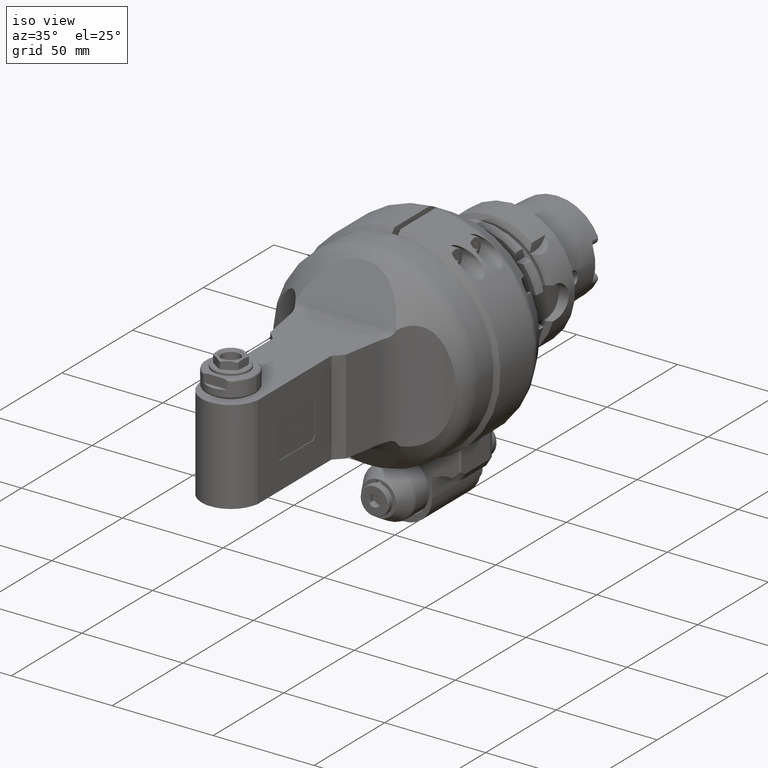
[diagram: clean part render]
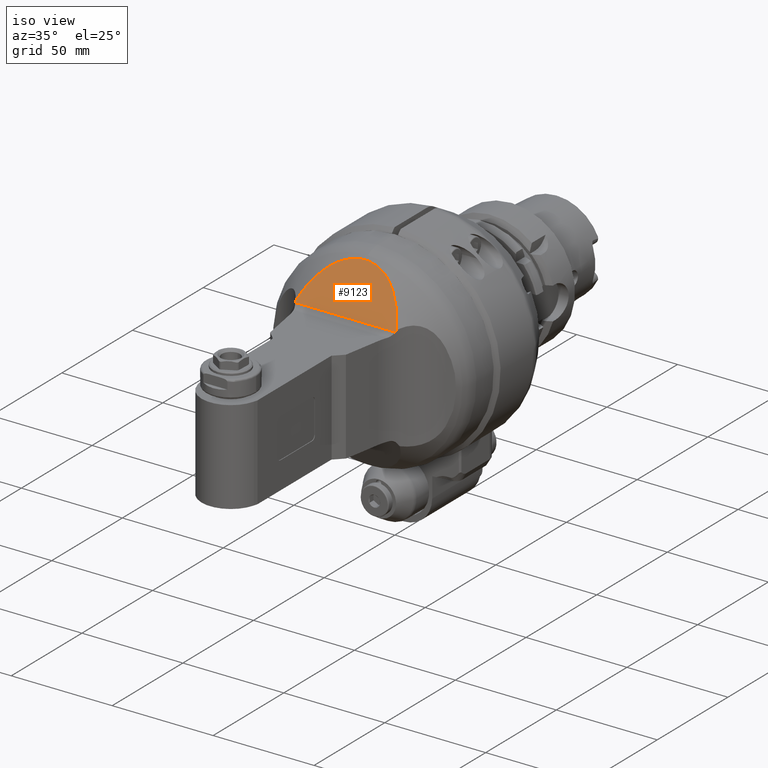
[diagram: same view with one face highlighted and labeled with its STEP entity id]
A machine part, iso view. The second image highlights one B-rep face of the part: STEP entity #9123.
In plain terms, the highlighted planar face has unit normal (-0, 0.8192, -0.5736).
Its self-contained STEP definition (entity closure, byte-faithful):
#44=ELLIPSE('',#10045,37.3310363154756,26.6520960099003);
#496=PLANE('',#10048);
#1042=FACE_OUTER_BOUND('',#1629,.T.);
#1629=EDGE_LOOP('',(#7991,#7992,#7993,#7994));
#2106=CIRCLE('',#10014,61.1215133780725);
#2116=CIRCLE('',#10036,61.1215133783264);
#2868=LINE('',#46114,#3507);
#3507=VECTOR('',#12278,49.45408261488);
#4327=VERTEX_POINT('',#45950);
#4328=VERTEX_POINT('',#45967);
#4350=VERTEX_POINT('',#46042);
#4351=VERTEX_POINT('',#46051);
#5562=EDGE_CURVE('',#4327,#4328,#2106,.T.);
#5597=EDGE_CURVE('',#4350,#4351,#2116,.T.);
#5608=EDGE_CURVE('',#4327,#4351,#44,.T.);
#5610=EDGE_CURVE('',#4328,#4350,#2868,.T.);
#7991=ORIENTED_EDGE('',*,*,#5610,.F.);
#7992=ORIENTED_EDGE('',*,*,#5562,.F.);
#7993=ORIENTED_EDGE('',*,*,#5608,.T.);
#7994=ORIENTED_EDGE('',*,*,#5597,.F.);
#9123=ADVANCED_FACE('',(#1042),#496,.F.);
#10014=AXIS2_PLACEMENT_3D('',#45968,#12184,#12185);
#10036=AXIS2_PLACEMENT_3D('',#46052,#12251,#12252);
#10045=AXIS2_PLACEMENT_3D('',#46110,#12270,#12271);
#10048=AXIS2_PLACEMENT_3D('',#46113,#12276,#12277);
#12184=DIRECTION('center_axis',(0.819155309113549,-0.573571773390025,1.7925061385749E-5));
#12185=DIRECTION('ref_axis',(-0.170381302522093,-0.243362506342258,-0.954853340706147));
#12251=DIRECTION('center_axis',(0.819155309111649,-0.573571773392739,-1.79250509594205E-5));
#12252=DIRECTION('ref_axis',(-0.17678701998738,-0.252510818952798,0.951306804283334));
#12270=DIRECTION('center_axis',(0.819152044289016,-0.573576436351011,0.));
#12271=DIRECTION('ref_axis',(-0.573576436351011,-0.819152044289016,-3.568793585829E-16));
#12276=DIRECTION('center_axis',(-0.819152044289016,0.573576436351011,0.));
#12277=DIRECTION('ref_axis',(-0.573576436351011,-0.819152044289016,0.));
#12278=DIRECTION('',(1.221831465758E-12,1.742805230438E-12,-1.));
#45950=CARTESIAN_POINT('',(51.76423686831,-25.76485296668,24.94381098088));
#45967=CARTESIAN_POINT('',(52.15576401351,-25.20569425468,24.72704130744));
#45968=CARTESIAN_POINT('Origin',(62.5697270749971,-10.3310095675574,83.0891225455336));
#46042=CARTESIAN_POINT('',(52.15576401357,-25.2056942546,-24.72704130743));
#46051=CARTESIAN_POINT('',(51.76423686831,-25.76485296668,-24.94381098088));
#46052=CARTESIAN_POINT('Origin',(62.569727075584,-10.3310095678844,-83.0891225457783));
#46110=CARTESIAN_POINT('Origin',(59.3067794640528,-14.9929857928144,1.33226762955019E-14));
#46113=CARTESIAN_POINT('Origin',(53.00000021942,-24.,58.8000024));
#46114=CARTESIAN_POINT('',(52.15576401351,-25.20569425468,24.72704130744));